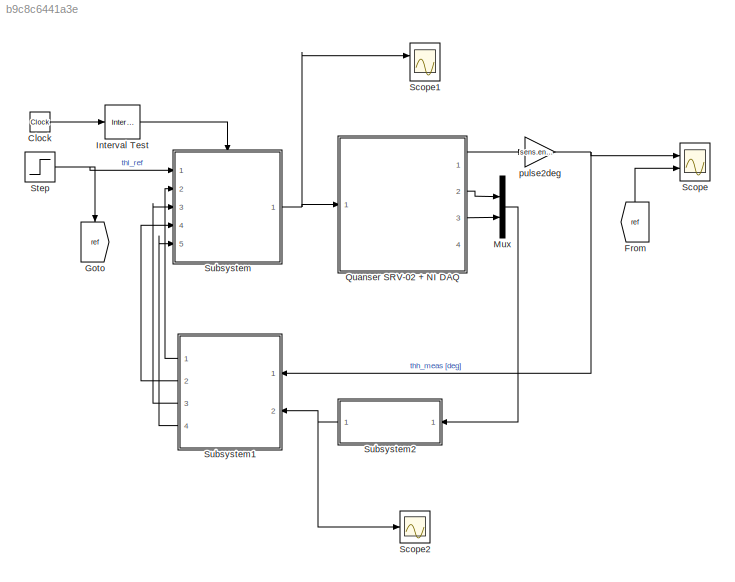
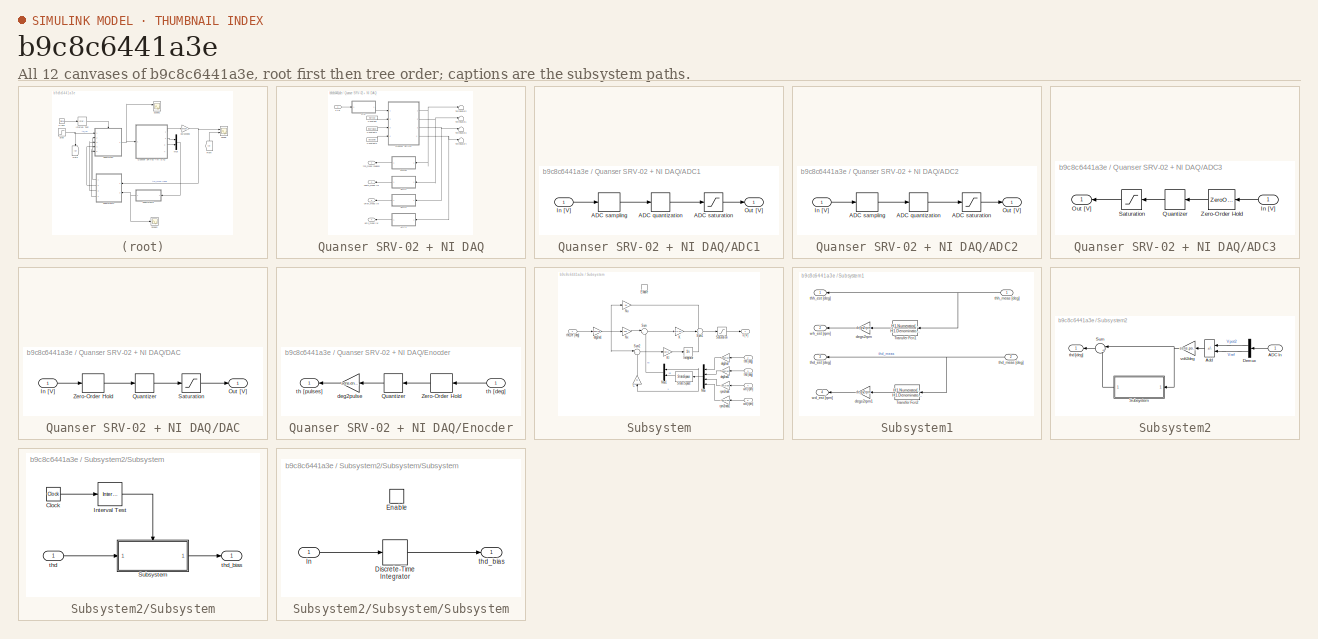
[diagram: thumbnail index - all 12 canvases of the model, root first then tree order]
MODEL slx_b9c8c6441a3e
KIND model
CONFIG AbsTol = auto
CONFIG EnableMultiTasking = off
CONFIG FixedStep = auto
CONFIG MaxStep = auto
CONFIG MinStep = auto
CONFIG RelTol = 1e-3
CONFIG SampleTimeConstraint = Unconstrained
CONFIG SolverName = ode45
CONFIG StartTime = 0.0
CONFIG StopTime = 10.0
BLOCK [Clock] Clock
BLOCK [From] From
  GotoTag = ref
  NameLocation = right
BLOCK [Goto] Goto
  GotoTag = ref
  NameLocation = left
BLOCK [Reference] Interval Test  REF=simulink/Logic and Bit
Operations/Interval Test
  Ports = [1, 1]
  SourceBlock = simulink/Logic and Bit\nOperations/Interval Test
  SourceProductBaseCode = SL
  SourceType = Interval Test
BLOCK [Mux] Mux
  DisplayOption = bar
  Inputs = 2
  Ports = [2, 1]
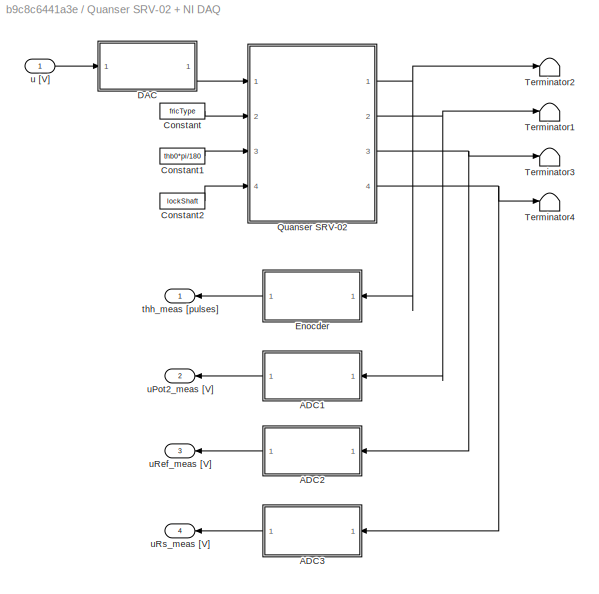
BLOCK [SubSystem] Quanser SRV-02 + NI DAQ
  Ports = [1, 4]
  RequestExecContextInheritance = off
BLOCK [SubSystem] Quanser SRV-02 + NI DAQ/ADC1
  Ports = [1, 1]
  RequestExecContextInheritance = off
BLOCK [Quantizer] Quanser SRV-02 + NI DAQ/ADC1/ADC quantization
  QuantizationInterval = daq.adc.q
BLOCK [ZeroOrderHold] Quanser SRV-02 + NI DAQ/ADC1/ADC sampling
  SampleTime = Ts
BLOCK [Saturate] Quanser SRV-02 + NI DAQ/ADC1/ADC saturation
  LowerLimit = -daq.adc.fs
  UpperLimit = daq.adc.fs
BLOCK [Inport] Quanser SRV-02 + NI DAQ/ADC1/In [V]
BLOCK [Outport] Quanser SRV-02 + NI DAQ/ADC1/Out [V]
BLOCK [SubSystem] Quanser SRV-02 + NI DAQ/ADC2
  Ports = [1, 1]
  RequestExecContextInheritance = off
BLOCK [Quantizer] Quanser SRV-02 + NI DAQ/ADC2/ADC quantization
  QuantizationInterval = daq.adc.q
BLOCK [ZeroOrderHold] Quanser SRV-02 + NI DAQ/ADC2/ADC sampling
  SampleTime = Ts
BLOCK [Saturate] Quanser SRV-02 + NI DAQ/ADC2/ADC saturation
  LowerLimit = -daq.adc.fs
  UpperLimit = daq.adc.fs
BLOCK [Inport] Quanser SRV-02 + NI DAQ/ADC2/In [V]
BLOCK [Outport] Quanser SRV-02 + NI DAQ/ADC2/Out [V]
BLOCK [SubSystem] Quanser SRV-02 + NI DAQ/ADC3
  Ports = [1, 1]
  RequestExecContextInheritance = off
BLOCK [Inport] Quanser SRV-02 + NI DAQ/ADC3/In [V]
BLOCK [Outport] Quanser SRV-02 + NI DAQ/ADC3/Out [V]
BLOCK [Quantizer] Quanser SRV-02 + NI DAQ/ADC3/Quantizer
  QuantizationInterval = daq.adc.q
BLOCK [Saturate] Quanser SRV-02 + NI DAQ/ADC3/Saturation
  LowerLimit = -daq.adc.fs
  UpperLimit = daq.adc.fs
BLOCK [ZeroOrderHold] Quanser SRV-02 + NI DAQ/ADC3/Zero-Order Hold
  SampleTime = Ts
BLOCK [Constant] Quanser SRV-02 + NI DAQ/Constant
  Value = fricType
BLOCK [Constant] Quanser SRV-02 + NI DAQ/Constant1
  SampleTime = Inf
  Value = thb0*pi/180
BLOCK [Constant] Quanser SRV-02 + NI DAQ/Constant2
  SampleTime = Inf
  Value = lockShaft
BLOCK [SubSystem] Quanser SRV-02 + NI DAQ/DAC
  Ports = [1, 1]
  RequestExecContextInheritance = off
BLOCK [Inport] Quanser SRV-02 + NI DAQ/DAC/In [V]
BLOCK [Outport] Quanser SRV-02 + NI DAQ/DAC/Out [V]
BLOCK [Quantizer] Quanser SRV-02 + NI DAQ/DAC/Quantizer
  QuantizationInterval = daq.dac.q
BLOCK [Saturate] Quanser SRV-02 + NI DAQ/DAC/Saturation
  LowerLimit = -daq.dac.fs
  UpperLimit = daq.dac.fs
BLOCK [ZeroOrderHold] Quanser SRV-02 + NI DAQ/DAC/Zero-Order Hold
  SampleTime = Ts
BLOCK [SubSystem] Quanser SRV-02 + NI DAQ/Enocder
  Ports = [1, 1]
  RequestExecContextInheritance = off
BLOCK [Quantizer] Quanser SRV-02 + NI DAQ/Enocder/Quantizer
  QuantizationInterval = sens.enc.pulse2deg
BLOCK [ZeroOrderHold] Quanser SRV-02 + NI DAQ/Enocder/Zero-Order Hold
  SampleTime = Ts
BLOCK [Gain] Quanser SRV-02 + NI DAQ/Enocder/deg2pulse
  Gain = sens.enc.deg2pulse
BLOCK [Inport] Quanser SRV-02 + NI DAQ/Enocder/th [deg]
BLOCK [Outport] Quanser SRV-02 + NI DAQ/Enocder/th [pulses]
BLOCK [ModelReference] Quanser SRV-02 + NI DAQ/Quanser SRV-02
  CopyOfModelProtected = on
  ModelNameDialog = SRV02RL_win64.slxp
  ModelReferenceVersion = 1.76
  Ports = [4, 4]
BLOCK [Terminator] Quanser SRV-02 + NI DAQ/Terminator1
BLOCK [Terminator] Quanser SRV-02 + NI DAQ/Terminator2
BLOCK [Terminator] Quanser SRV-02 + NI DAQ/Terminator3
BLOCK [Terminator] Quanser SRV-02 + NI DAQ/Terminator4
BLOCK [Outport] Quanser SRV-02 + NI DAQ/thh_meas [pulses]
BLOCK [Inport] Quanser SRV-02 + NI DAQ/u [V]
BLOCK [Outport] Quanser SRV-02 + NI DAQ/uPot2_meas [V]
  Port = 2
BLOCK [Outport] Quanser SRV-02 + NI DAQ/uRef_meas [V]
  Port = 3
BLOCK [Outport] Quanser SRV-02 + NI DAQ/uRs_meas [V]
  Port = 4
BLOCK [Scope] Scope
  Floating = off
  NumInputPorts = 2
  Ports = [2]
  ScopeSpecificationString = Simulink.scopes.TimeScopeBlockCfg('CurrentConfiguration', extmgr.ConfigurationSet(extmgr.Configuration('Core','General UI',true),extmgr.Configuration('Core','Source UI',true),extmgr.Configuration('Sources','WiredSimulink',true,'DataLogging',true,'DataLoggingSaveFormat','StructureWithTime','DataLoggingVariableName','ScopeDataThh'),extmgr.Configuration('Visuals','Time Domain',true,'SerializedDisplay...<+1851ch>
BLOCK [Scope] Scope1
  Floating = off
  NumInputPorts = 2
  Ports = [2]
  ScopeSpecificationString = Simulink.scopes.TimeScopeBlockCfg('CurrentConfiguration', extmgr.ConfigurationSet(extmgr.Configuration('Core','General UI',true),extmgr.Configuration('Core','Source UI',true),extmgr.Configuration('Sources','WiredSimulink',true,'DataLogging',true,'DataLoggingSaveFormat','StructureWithTime','DataLoggingVariableName','ScopeData1'),extmgr.Configuration('Visuals','Time Domain',true,'SerializedDisplays'...<+1830ch>
BLOCK [Scope] Scope2
  Floating = off
  NumInputPorts = 1
  Ports = [1]
  ScopeSpecificationString = Simulink.scopes.TimeScopeBlockCfg('CurrentConfiguration', extmgr.ConfigurationSet(extmgr.Configuration('Core','General UI',true),extmgr.Configuration('Core','Source UI',true),extmgr.Configuration('Sources','WiredSimulink',true,'DataLoggingVariableName','ScopeData2'),extmgr.Configuration('Visuals','Time Domain',true,'SerializedDisplays',{struct('MinYLimReal','-15.59238','MaxYLimReal','17.92253','YL...<+1404ch>
BLOCK [Step] Step
  After = 50
  SampleTime = 0
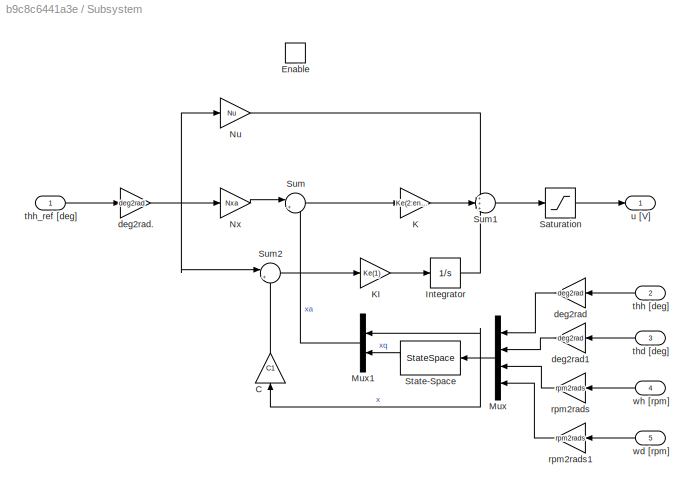
BLOCK [SubSystem] Subsystem
  Ports = [5, 1, 1]
  RequestExecContextInheritance = off
BLOCK [Gain] Subsystem/C
  Gain = C1
  Multiplication = Matrix(K*u)
  NameLocation = right
BLOCK [EnablePort] Subsystem/Enable
  Ports = []
BLOCK [Integrator] Subsystem/Integrator
  Ports = [1, 1]
BLOCK [Gain] Subsystem/K
  Gain = Ke(2:end)
  Multiplication = Matrix(K*u)
BLOCK [Gain] Subsystem/KI
  Gain = Ke(1)
BLOCK [Mux] Subsystem/Mux
  DisplayOption = bar
  NameLocation = top
  Ports = [4, 1]
BLOCK [Mux] Subsystem/Mux1
  DisplayOption = bar
  Inputs = 2
  Ports = [2, 1]
BLOCK [Gain] Subsystem/Nu
  Gain = Nu
BLOCK [Gain] Subsystem/Nx
  Gain = Nxa
  Multiplication = Matrix(K*u)
BLOCK [Saturate] Subsystem/Saturation
  LowerLimit = -daq.dac.fs
  UpperLimit = daq.dac.fs
BLOCK [StateSpace] Subsystem/State-Space
  A = Aq
  B = Bq
  C = eye(size(Aq,1))
  D = zeros(size(Aq,1),size(Bq,2))
  InitialCondition = 0
  NameLocation = top
  Ports = [1, 1]
BLOCK [Sum] Subsystem/Sum
  Inputs = |+-
  Ports = [2, 1]
BLOCK [Sum] Subsystem/Sum1
  Inputs = +++
  Ports = [3, 1]
BLOCK [Sum] Subsystem/Sum2
  Inputs = |+-
  Ports = [2, 1]
BLOCK [Gain] Subsystem/deg2rad
  Gain = deg2rad
  NameLocation = top
BLOCK [Gain] Subsystem/deg2rad.
  Gain = deg2rad
BLOCK [Gain] Subsystem/deg2rad1
  Gain = deg2rad
  NameLocation = top
BLOCK [Gain] Subsystem/rpm2rads
  Gain = rpm2rads
BLOCK [Gain] Subsystem/rpm2rads1
  Gain = rpm2rads
BLOCK [Inport] Subsystem/thd [deg]
  Port = 3
BLOCK [Inport] Subsystem/thh [deg]
  Port = 2
BLOCK [Inport] Subsystem/thh_ref [deg]
BLOCK [Outport] Subsystem/u [V]
BLOCK [Inport] Subsystem/wd [rpm]
  Port = 5
BLOCK [Inport] Subsystem/wh [rpm]
  Port = 4
BLOCK [SubSystem] Subsystem1
  NameLocation = top
  Ports = [2, 4]
  RequestExecContextInheritance = off
BLOCK [TransferFcn] Subsystem1/Transfer Fcn1
  Denominator = H1.Denominator{1}
  Numerator = H1.Numerator{1}
BLOCK [TransferFcn] Subsystem1/Transfer Fcn2
  Denominator = H1.Denominator{1}
  Numerator = H1.Numerator{1}
BLOCK [Gain] Subsystem1/degs2rpm
  Gain = degs2rpm
BLOCK [Gain] Subsystem1/degs2rpm1
  Gain = degs2rpm
BLOCK [Outport] Subsystem1/thd_est [deg]
  Port = 3
BLOCK [Inport] Subsystem1/thd_meas [deg]
  Port = 2
BLOCK [Outport] Subsystem1/thh_est [deg]
BLOCK [Inport] Subsystem1/thh_meas [deg]
BLOCK [Outport] Subsystem1/wd_est [rpm]
  Port = 4
BLOCK [Outport] Subsystem1/wh_est [rpm]
  Port = 2
BLOCK [SubSystem] Subsystem2
  NameLocation = top
  Ports = [1, 1]
  RequestExecContextInheritance = off
BLOCK [Inport] Subsystem2/ADC In
BLOCK [Sum] Subsystem2/Add
  IconShape = rectangular
  Inputs = +-
  Ports = [2, 1]
BLOCK [Demux] Subsystem2/Demux
  Outputs = 2
  Ports = [1, 2]
BLOCK [SubSystem] Subsystem2/Subsystem
  Ports = [1, 1]
  RequestExecContextInheritance = off
BLOCK [Clock] Subsystem2/Subsystem/Clock
BLOCK [Reference] Subsystem2/Subsystem/Interval Test  REF=simulink/Logic and Bit
Operations/Interval Test
  Ports = [1, 1]
  SourceBlock = simulink/Logic and Bit\nOperations/Interval Test
  SourceProductBaseCode = SL
  SourceType = Interval Test
BLOCK [SubSystem] Subsystem2/Subsystem/Subsystem
  Ports = [1, 1, 1]
  RequestExecContextInheritance = off
BLOCK [DiscreteIntegrator] Subsystem2/Subsystem/Subsystem/Discrete-Time Integrator
  ICPrevOutput = DiscIntNeverNeededParam
  ICPrevScaledInput = DiscIntNeverNeededParam
  InitialConditionSetting = Auto
  Ports = [1, 1]
  SampleTime = Ts
  gainval = 1/(t1-t0)
BLOCK [EnablePort] Subsystem2/Subsystem/Subsystem/Enable
  Ports = []
BLOCK [Inport] Subsystem2/Subsystem/Subsystem/In
BLOCK [Outport] Subsystem2/Subsystem/Subsystem/thd_bias
BLOCK [Inport] Subsystem2/Subsystem/thd
BLOCK [Outport] Subsystem2/Subsystem/thd_bias
BLOCK [Sum] Subsystem2/Sum
  Inputs = |+-
  Ports = [2, 1]
BLOCK [Outport] Subsystem2/thd [deg]
BLOCK [Gain] Subsystem2/volt2deg
  Gain = sens.pot2.V2deg
BLOCK [Gain] pulse2deg
  Gain = sens.enc.pulse2deg
LINE Clock:1 -> Interval Test:1
LINE From:1 -> Scope:2
LINE Interval Test:1 -> Subsystem:enable
LINE Mux:1 -> Subsystem2:1
LINE Quanser SRV-02 + NI DAQ/ADC1/ADC quantization:1 -> Quanser SRV-02 + NI DAQ/ADC1/ADC saturation:1
LINE Quanser SRV-02 + NI DAQ/ADC1/ADC sampling:1 -> Quanser SRV-02 + NI DAQ/ADC1/ADC quantization:1
LINE Quanser SRV-02 + NI DAQ/ADC1/ADC saturation:1 -> Quanser SRV-02 + NI DAQ/ADC1/Out [V]:1
LINE Quanser SRV-02 + NI DAQ/ADC1/In [V]:1 -> Quanser SRV-02 + NI DAQ/ADC1/ADC sampling:1
LINE Quanser SRV-02 + NI DAQ/ADC1:1 -> Quanser SRV-02 + NI DAQ/uPot2_meas [V]:1
LINE Quanser SRV-02 + NI DAQ/ADC2/ADC quantization:1 -> Quanser SRV-02 + NI DAQ/ADC2/ADC saturation:1
LINE Quanser SRV-02 + NI DAQ/ADC2/ADC sampling:1 -> Quanser SRV-02 + NI DAQ/ADC2/ADC quantization:1
LINE Quanser SRV-02 + NI DAQ/ADC2/ADC saturation:1 -> Quanser SRV-02 + NI DAQ/ADC2/Out [V]:1
LINE Quanser SRV-02 + NI DAQ/ADC2/In [V]:1 -> Quanser SRV-02 + NI DAQ/ADC2/ADC sampling:1
LINE Quanser SRV-02 + NI DAQ/ADC2:1 -> Quanser SRV-02 + NI DAQ/uRef_meas [V]:1
LINE Quanser SRV-02 + NI DAQ/ADC3/In [V]:1 -> Quanser SRV-02 + NI DAQ/ADC3/Zero-Order Hold:1
LINE Quanser SRV-02 + NI DAQ/ADC3/Quantizer:1 -> Quanser SRV-02 + NI DAQ/ADC3/Saturation:1
LINE Quanser SRV-02 + NI DAQ/ADC3/Saturation:1 -> Quanser SRV-02 + NI DAQ/ADC3/Out [V]:1
LINE Quanser SRV-02 + NI DAQ/ADC3/Zero-Order Hold:1 -> Quanser SRV-02 + NI DAQ/ADC3/Quantizer:1
LINE Quanser SRV-02 + NI DAQ/ADC3:1 -> Quanser SRV-02 + NI DAQ/uRs_meas [V]:1
LINE Quanser SRV-02 + NI DAQ/Constant1:1 -> Quanser SRV-02 + NI DAQ/Quanser SRV-02:3
LINE Quanser SRV-02 + NI DAQ/Constant2:1 -> Quanser SRV-02 + NI DAQ/Quanser SRV-02:4
LINE Quanser SRV-02 + NI DAQ/Constant:1 -> Quanser SRV-02 + NI DAQ/Quanser SRV-02:2
LINE Quanser SRV-02 + NI DAQ/DAC/In [V]:1 -> Quanser SRV-02 + NI DAQ/DAC/Zero-Order Hold:1
LINE Quanser SRV-02 + NI DAQ/DAC/Quantizer:1 -> Quanser SRV-02 + NI DAQ/DAC/Saturation:1
LINE Quanser SRV-02 + NI DAQ/DAC/Saturation:1 -> Quanser SRV-02 + NI DAQ/DAC/Out [V]:1
LINE Quanser SRV-02 + NI DAQ/DAC/Zero-Order Hold:1 -> Quanser SRV-02 + NI DAQ/DAC/Quantizer:1
LINE Quanser SRV-02 + NI DAQ/DAC:1 -> Quanser SRV-02 + NI DAQ/Quanser SRV-02:1
LINE Quanser SRV-02 + NI DAQ/Enocder/Quantizer:1 -> Quanser SRV-02 + NI DAQ/Enocder/deg2pulse:1
LINE Quanser SRV-02 + NI DAQ/Enocder/Zero-Order Hold:1 -> Quanser SRV-02 + NI DAQ/Enocder/Quantizer:1
LINE Quanser SRV-02 + NI DAQ/Enocder/deg2pulse:1 -> Quanser SRV-02 + NI DAQ/Enocder/th [pulses]:1
LINE Quanser SRV-02 + NI DAQ/Enocder/th [deg]:1 -> Quanser SRV-02 + NI DAQ/Enocder/Zero-Order Hold:1
LINE Quanser SRV-02 + NI DAQ/Enocder:1 -> Quanser SRV-02 + NI DAQ/thh_meas [pulses]:1
NET Quanser SRV-02 + NI DAQ/Quanser SRV-02:1 -> Quanser SRV-02 + NI DAQ/Enocder:1, Quanser SRV-02 + NI DAQ/Terminator2:1
NET Quanser SRV-02 + NI DAQ/Quanser SRV-02:2 -> Quanser SRV-02 + NI DAQ/ADC1:1, Quanser SRV-02 + NI DAQ/Terminator1:1
NET Quanser SRV-02 + NI DAQ/Quanser SRV-02:3 -> Quanser SRV-02 + NI DAQ/ADC2:1, Quanser SRV-02 + NI DAQ/Terminator3:1
NET Quanser SRV-02 + NI DAQ/Quanser SRV-02:4 -> Quanser SRV-02 + NI DAQ/ADC3:1, Quanser SRV-02 + NI DAQ/Terminator4:1
LINE Quanser SRV-02 + NI DAQ/u [V]:1 -> Quanser SRV-02 + NI DAQ/DAC:1
LINE Quanser SRV-02 + NI DAQ:1 -> pulse2deg:1
LINE Quanser SRV-02 + NI DAQ:2 -> Mux:1
LINE Quanser SRV-02 + NI DAQ:3 -> Mux:2
NET Step:1 -> Goto:1, Subsystem:1
LINE Subsystem/C:1 -> Subsystem/Sum2:2
LINE Subsystem/Integrator:1 -> Subsystem/Sum1:3
LINE Subsystem/K:1 -> Subsystem/Sum1:2
LINE Subsystem/KI:1 -> Subsystem/Integrator:1
LINE Subsystem/Mux1:1 -> Subsystem/Sum:2
NET Subsystem/Mux:1 -> Subsystem/C:1, Subsystem/Mux1:1, Subsystem/State-Space:1
LINE Subsystem/Nu:1 -> Subsystem/Sum1:1
LINE Subsystem/Nx:1 -> Subsystem/Sum:1
LINE Subsystem/Saturation:1 -> Subsystem/u [V]:1
LINE Subsystem/State-Space:1 -> Subsystem/Mux1:2
LINE Subsystem/Sum1:1 -> Subsystem/Saturation:1
LINE Subsystem/Sum2:1 -> Subsystem/KI:1
LINE Subsystem/Sum:1 -> Subsystem/K:1
NET Subsystem/deg2rad.:1 -> Subsystem/Nu:1, Subsystem/Nx:1, Subsystem/Sum2:1
LINE Subsystem/deg2rad1:1 -> Subsystem/Mux:2
LINE Subsystem/deg2rad:1 -> Subsystem/Mux:1
LINE Subsystem/rpm2rads1:1 -> Subsystem/Mux:4
LINE Subsystem/rpm2rads:1 -> Subsystem/Mux:3
LINE Subsystem/thd [deg]:1 -> Subsystem/deg2rad1:1
LINE Subsystem/thh [deg]:1 -> Subsystem/deg2rad:1
LINE Subsystem/thh_ref [deg]:1 -> Subsystem/deg2rad.:1
LINE Subsystem/wd [rpm]:1 -> Subsystem/rpm2rads1:1
LINE Subsystem/wh [rpm]:1 -> Subsystem/rpm2rads:1
LINE Subsystem1/Transfer Fcn1:1 -> Subsystem1/degs2rpm:1
LINE Subsystem1/Transfer Fcn2:1 -> Subsystem1/degs2rpm1:1
LINE Subsystem1/degs2rpm1:1 -> Subsystem1/wd_est [rpm]:1
LINE Subsystem1/degs2rpm:1 -> Subsystem1/wh_est [rpm]:1
NET Subsystem1/thd_meas [deg]:1 -> Subsystem1/Transfer Fcn2:1, Subsystem1/thd_est [deg]:1
NET Subsystem1/thh_meas [deg]:1 -> Subsystem1/Transfer Fcn1:1, Subsystem1/thh_est [deg]:1
LINE Subsystem1:1 -> Subsystem:2
LINE Subsystem1:2 -> Subsystem:4
LINE Subsystem1:3 -> Subsystem:3
LINE Subsystem1:4 -> Subsystem:5
LINE Subsystem2/ADC In:1 -> Subsystem2/Demux:1
LINE Subsystem2/Add:1 -> Subsystem2/volt2deg:1
LINE Subsystem2/Demux:1 -> Subsystem2/Add:1
LINE Subsystem2/Demux:2 -> Subsystem2/Add:2
LINE Subsystem2/Subsystem/Clock:1 -> Subsystem2/Subsystem/Interval Test:1
LINE Subsystem2/Subsystem/Interval Test:1 -> Subsystem2/Subsystem/Subsystem:enable
LINE Subsystem2/Subsystem/Subsystem/Discrete-Time Integrator:1 -> Subsystem2/Subsystem/Subsystem/thd_bias:1
LINE Subsystem2/Subsystem/Subsystem/In:1 -> Subsystem2/Subsystem/Subsystem/Discrete-Time Integrator:1
LINE Subsystem2/Subsystem/Subsystem:1 -> Subsystem2/Subsystem/thd_bias:1
LINE Subsystem2/Subsystem/thd:1 -> Subsystem2/Subsystem/Subsystem:1
LINE Subsystem2/Subsystem:1 -> Subsystem2/Sum:2
LINE Subsystem2/Sum:1 -> Subsystem2/thd [deg]:1
NET Subsystem2/volt2deg:1 -> Subsystem2/Subsystem:1, Subsystem2/Sum:1
NET Subsystem2:1 -> Scope2:1, Subsystem1:2
NET Subsystem:1 -> Quanser SRV-02 + NI DAQ:1, Scope1:1
NET pulse2deg:1 -> Scope:1, Subsystem1:1
note: NET lines group one-source signal fan-out (src -> all destinations, sorted); 1:1 wires keep LINE
